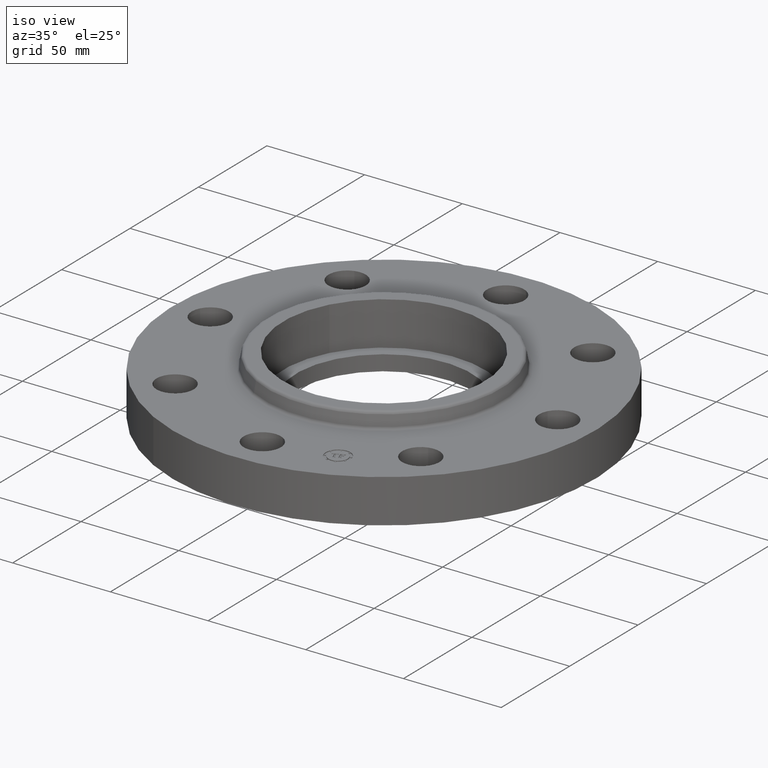
[diagram: clean part render]
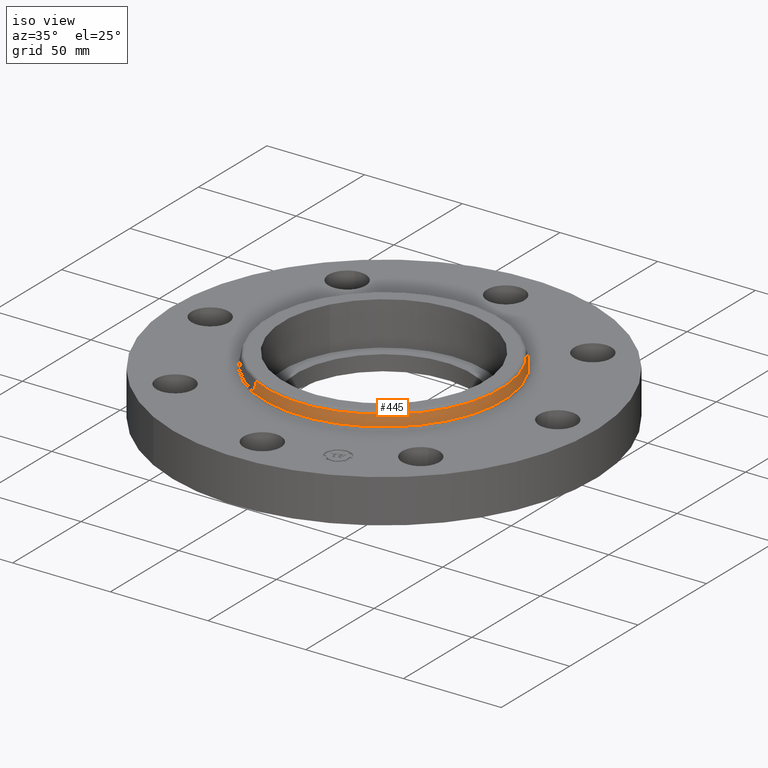
[diagram: same view with one face highlighted and labeled with its STEP entity id]
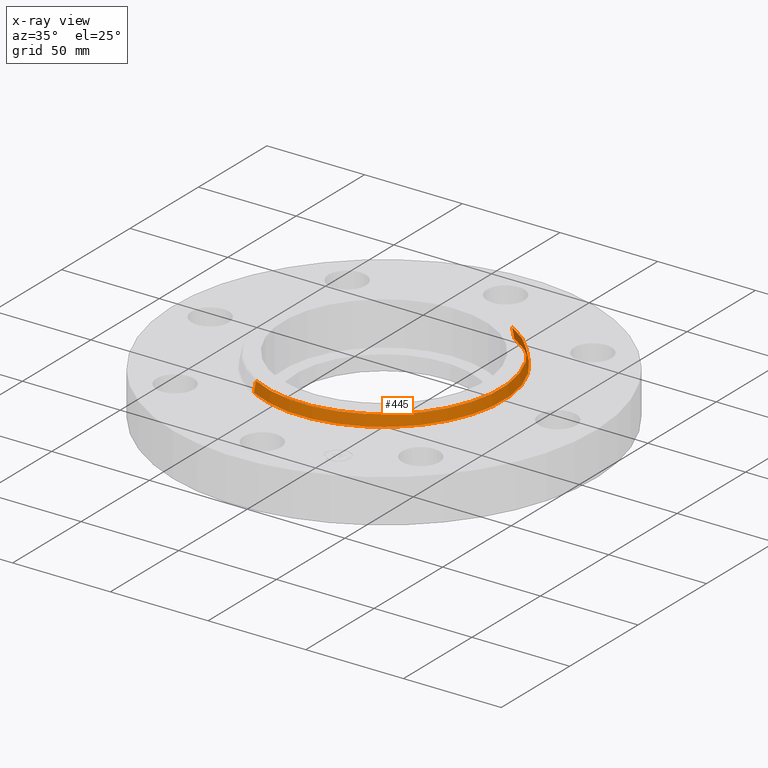
[diagram: x-ray of the same camera — body ghosted, the highlighted face saturated]
A machine part, iso view. The second image highlights one B-rep face of the part: STEP entity #445.
The next image is the same camera in x-ray: the body ghosted, the highlighted face saturated — about 0% of this face is hidden behind the body in this view.
In plain terms, the highlighted conical surface has half-angle 10 deg.
Its self-contained STEP definition (entity closure, byte-faithful):
#381=AXIS2_PLACEMENT_3D('Circle Axis2P3D',#379,#380,$) ;
#418=AXIS2_PLACEMENT_3D('Cone Axis2P3D',#415,#416,#417) ;
#429=AXIS2_PLACEMENT_3D('Circle Axis2P3D',#427,#428,$) ;
#376=CARTESIAN_POINT('Vertex',(1.14882704866,2.10291380694,0.929581109344)) ;
#379=CARTESIAN_POINT('Axis2P3D Location',(0.,0.,0.929581109344)) ;
#383=CARTESIAN_POINT('Vertex',(-1.14882704866,-2.10291380694,0.929581109344)) ;
#415=CARTESIAN_POINT('Axis2P3D Location',(0.,0.,1.14041889066)) ;
#420=CARTESIAN_POINT('Line Origine',(1.1399153934,2.08660113142,1.035)) ;
#424=CARTESIAN_POINT('Vertex',(1.13100373815,2.07028845589,1.14041889066)) ;
#427=CARTESIAN_POINT('Axis2P3D Location',(0.,0.,1.14041889066)) ;
#431=CARTESIAN_POINT('Vertex',(-1.13100373815,-2.07028845589,1.14041889066)) ;
#434=CARTESIAN_POINT('Line Origine',(-1.1399153934,-2.08660113142,1.035)) ;
#380=DIRECTION('Axis2P3D Direction',(0.,0.,-0.0393700787402)) ;
#416=DIRECTION('Axis2P3D Direction',(0.,0.,-0.0393700787402)) ;
#417=DIRECTION('Axis2P3D XDirection',(-0.0188750212049,-0.0345504945626,0.)) ;
#421=DIRECTION('Vector Direction',(0.00327761303565,0.00599963041829,-0.03877195878)) ;
#428=DIRECTION('Axis2P3D Direction',(0.,0.,-0.0393700787402)) ;
#435=DIRECTION('Vector Direction',(-0.00327761303565,-0.00599963041829,-0.03877195878)) ;
#422=VECTOR('Line Direction',#421,0.0393700787402) ;
#436=VECTOR('Line Direction',#435,0.0393700787402) ;
#440=ORIENTED_EDGE('',*,*,#385,.F.) ;
#441=ORIENTED_EDGE('',*,*,#426,.T.) ;
#442=ORIENTED_EDGE('',*,*,#433,.T.) ;
#443=ORIENTED_EDGE('',*,*,#438,.F.) ;
#445=ADVANCED_FACE('PartBody',(#444),#419,.T.) ;
#382=CIRCLE('generated circle',#381,2.3962575127) ;
#430=CIRCLE('generated circle',#429,2.3590811233) ;
#419=CONICAL_SURFACE('Cone',#418,2.3590811233,0.174532925199) ;
#385=EDGE_CURVE('',#377,#384,#382,.T.) ;
#426=EDGE_CURVE('',#377,#425,#423,.F.) ;
#433=EDGE_CURVE('',#425,#432,#430,.T.) ;
#438=EDGE_CURVE('',#384,#432,#437,.F.) ;
#439=EDGE_LOOP('',(#440,#441,#442,#443)) ;
#444=FACE_OUTER_BOUND('',#439,.T.) ;
#423=LINE('Line',#420,#422) ;
#437=LINE('Line',#434,#436) ;
#377=VERTEX_POINT('',#376) ;
#384=VERTEX_POINT('',#383) ;
#425=VERTEX_POINT('',#424) ;
#432=VERTEX_POINT('',#431) ;